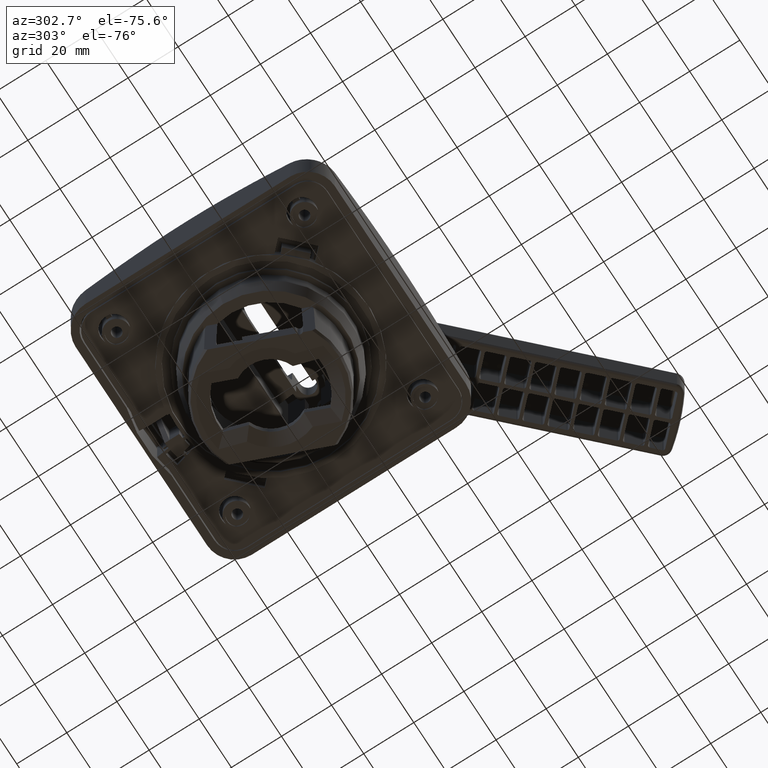
[diagram: clean part render]
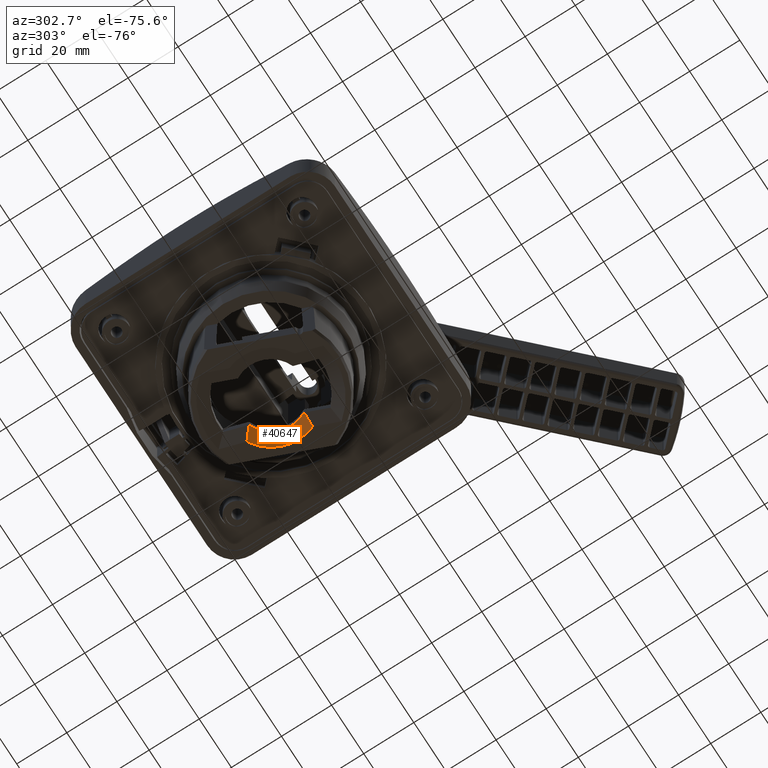
[diagram: same view with one face highlighted and labeled with its STEP entity id]
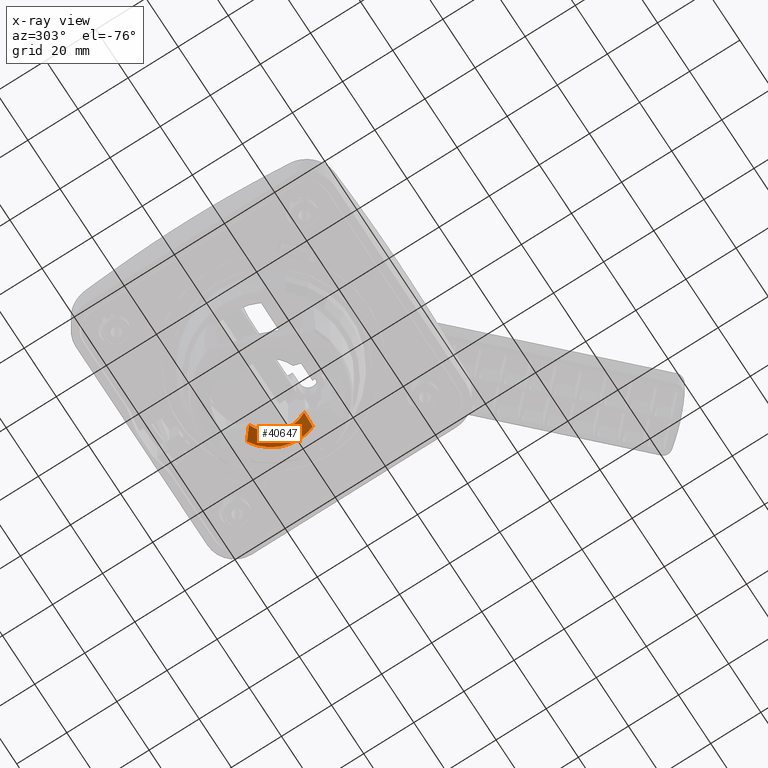
[diagram: x-ray of the same camera — body ghosted, the highlighted face saturated]
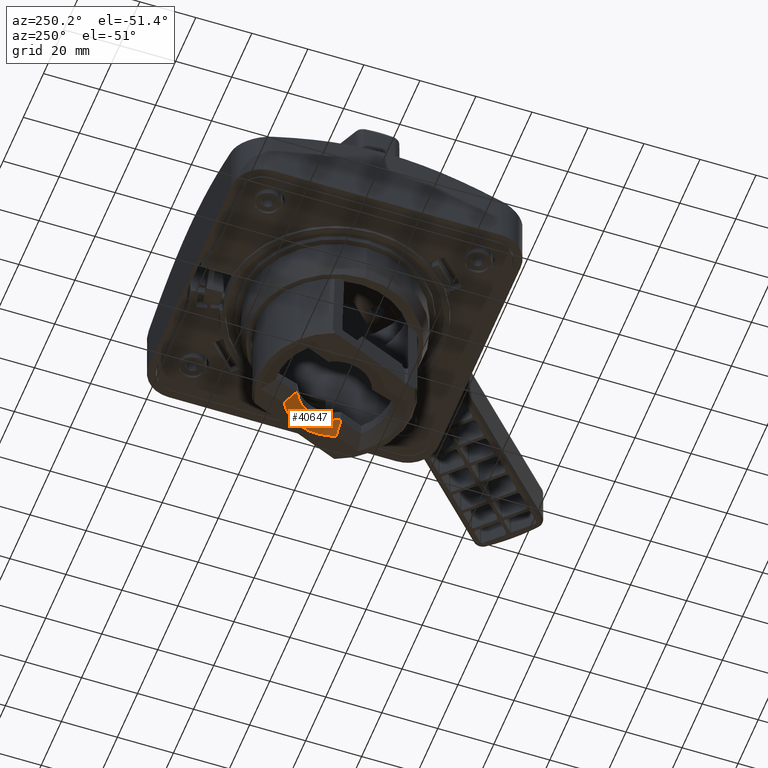
[diagram: same view with one face highlighted and labeled with its STEP entity id]
A machine part, auxiliary view. The second image highlights one B-rep face of the part: STEP entity #40647.
The next image is the same camera in x-ray: the body ghosted, the highlighted face saturated — about 0% of this face is hidden behind the body in this view.
A second angle (auxiliary view) of the same face is appended — the face is thin or edge-on in the first view.
In plain terms, the highlighted conical surface has half-angle 60 deg.
Its self-contained STEP definition (entity closure, byte-faithful):
#34982=CARTESIAN_POINT('',(0.E0,0.E0,-1.694E0));
#34983=DIRECTION('',(0.E0,0.E0,-1.E0));
#34984=DIRECTION('',(4.925117712414E-1,8.703057825780E-1,0.E0));
#34985=AXIS2_PLACEMENT_3D('',#34982,#34983,#34984);
#34990=CARTESIAN_POINT('',(0.E0,0.E0,-1.694E0));
#34991=DIRECTION('',(0.E0,0.E0,-1.E0));
#34992=DIRECTION('',(9.271838545668E-1,3.746065934159E-1,0.E0));
#34993=AXIS2_PLACEMENT_3D('',#34990,#34991,#34992);
#37317=CARTESIAN_POINT('',(3.354497673925E-1,5.927652685138E-1,-1.694E0));
#37318=CARTESIAN_POINT('',(3.167722695168E-1,5.777765477949E-1,
-1.681157618137E0));
#37319=CARTESIAN_POINT('',(2.804924468969E-1,5.480802072207E-1,
-1.656113932095E0));
#37320=CARTESIAN_POINT('',(2.293337804238E-1,5.042783371317E-1,
-1.620474271171E0));
#37321=CARTESIAN_POINT('',(1.974500244666E-1,4.755946100292E-1,
-1.598028683847E0));
#37322=CARTESIAN_POINT('',(1.820613391198E-1,4.613780107438E-1,
-1.587132465173E0));
#37327=CARTESIAN_POINT('',(0.E0,0.E0,-1.587132465173E0));
#37328=DIRECTION('',(0.E0,0.E0,-1.E0));
#37329=DIRECTION('',(3.670591514512E-1,9.301976023060E-1,0.E0));
#37330=AXIS2_PLACEMENT_3D('',#37327,#37328,#37329);
#37335=CARTESIAN_POINT('',(0.E0,0.E0,-1.587132465173E0));
#37336=DIRECTION('',(0.E0,0.E0,-1.E0));
#37337=DIRECTION('',(9.271838545668E-1,3.746065934159E-1,0.E0));
#37338=AXIS2_PLACEMENT_3D('',#37335,#37336,#37337);
#37350=CARTESIAN_POINT('',(6.337327025826E-1,-2.495597557244E-1,-1.694E0));
#37351=CARTESIAN_POINT('',(6.105747471471E-1,-2.496619756018E-1,
-1.681581210360E0));
#37352=CARTESIAN_POINT('',(5.647474851326E-1,-2.494414507319E-1,
-1.657097120642E0));
#37353=CARTESIAN_POINT('',(4.974275153724E-1,-2.476574253991E-1,
-1.621445925464E0));
#37354=CARTESIAN_POINT('',(4.535419549686E-1,-2.453988462376E-1,
-1.598442036528E0));
#37355=CARTESIAN_POINT('',(4.318428245775E-1,-2.439831446247E-1,
-1.587132465173E0));
#38166=CARTESIAN_POINT('',(4.318428245775E-1,-2.439831446247E-1,
-1.587132465173E0));
#38167=VERTEX_POINT('',#38166);
#38169=CARTESIAN_POINT('',(1.820613391198E-1,4.613780107438E-1,
-1.587132465173E0));
#38171=VERTEX_POINT('',#38169);
#38172=CARTESIAN_POINT('',(3.354497673925E-1,5.927652685138E-1,-1.694E0));
#38173=VERTEX_POINT('',#38172);
#38174=CARTESIAN_POINT('',(6.315049233454E-1,2.551445507755E-1,-1.694E0));
#38175=VERTEX_POINT('',#38174);
#38176=CARTESIAN_POINT('',(6.337327025826E-1,-2.495597557244E-1,-1.694E0));
#38177=VERTEX_POINT('',#38176);
#38178=CARTESIAN_POINT('',(4.598831918652E-1,1.858048703343E-1,
-1.587132465173E0));
#38179=VERTEX_POINT('',#38178);
#40633=CARTESIAN_POINT('',(0.E0,0.E0,-1.640566232587E0));
#40634=DIRECTION('',(0.E0,0.E0,-1.E0));
#40635=DIRECTION('',(-9.271838545668E-1,-3.746065934159E-1,0.E0));
#40636=AXIS2_PLACEMENT_3D('',#40633,#40634,#40635);
#40637=CONICAL_SURFACE('',#40636,5.8855E-1,5.999999999992E1);
#40638=ORIENTED_EDGE('',*,*,#38551,.F.);
#40639=ORIENTED_EDGE('',*,*,#38549,.F.);
#40640=ORIENTED_EDGE('',*,*,#40454,.T.);
#40641=ORIENTED_EDGE('',*,*,#40601,.T.);
#40642=ORIENTED_EDGE('',*,*,#40599,.T.);
#40644=ORIENTED_EDGE('',*,*,#40643,.F.);
#40645=EDGE_LOOP('',(#40638,#40639,#40640,#40641,#40642,#40644));
#40646=FACE_OUTER_BOUND('',#40645,.F.);
#40647=ADVANCED_FACE('',(#40646),#40637,.F.);
#34986=CIRCLE('',#34985,6.810999999999E-1);
#34994=CIRCLE('',#34993,6.810999999999E-1);
#37323=B_SPLINE_CURVE_WITH_KNOTS('',3,(#37317,#37318,#37319,#37320,#37321,
#37322),.UNSPECIFIED.,.F.,.F.,(4,1,1,4),(0.E0,3.333333333333E-1,
6.666666666667E-1,1.E0),.UNSPECIFIED.);
#37331=CIRCLE('',#37330,4.960000000001E-1);
#37339=CIRCLE('',#37338,4.960000000001E-1);
#37356=B_SPLINE_CURVE_WITH_KNOTS('',3,(#37350,#37351,#37352,#37353,#37354,
#37355),.UNSPECIFIED.,.F.,.F.,(4,1,1,4),(0.E0,3.333333333333E-1,
6.666666666667E-1,1.E0),.UNSPECIFIED.);
#38549=EDGE_CURVE('',#38173,#38175,#34986,.T.);
#38551=EDGE_CURVE('',#38175,#38177,#34994,.T.);
#40454=EDGE_CURVE('',#38173,#38171,#37323,.T.);
#40599=EDGE_CURVE('',#38179,#38167,#37339,.T.);
#40601=EDGE_CURVE('',#38171,#38179,#37331,.T.);
#40643=EDGE_CURVE('',#38177,#38167,#37356,.T.);